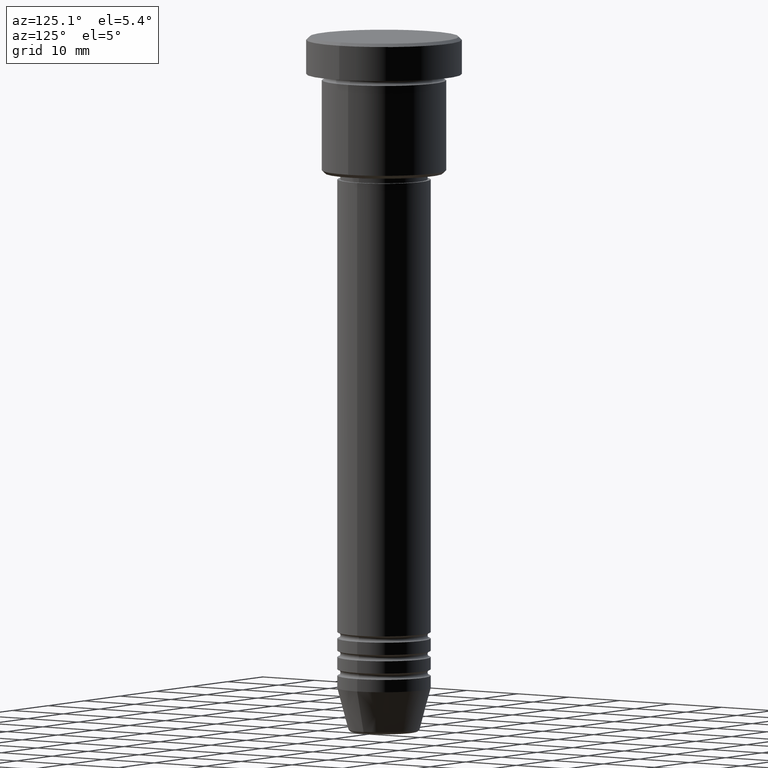
[diagram: clean part render]
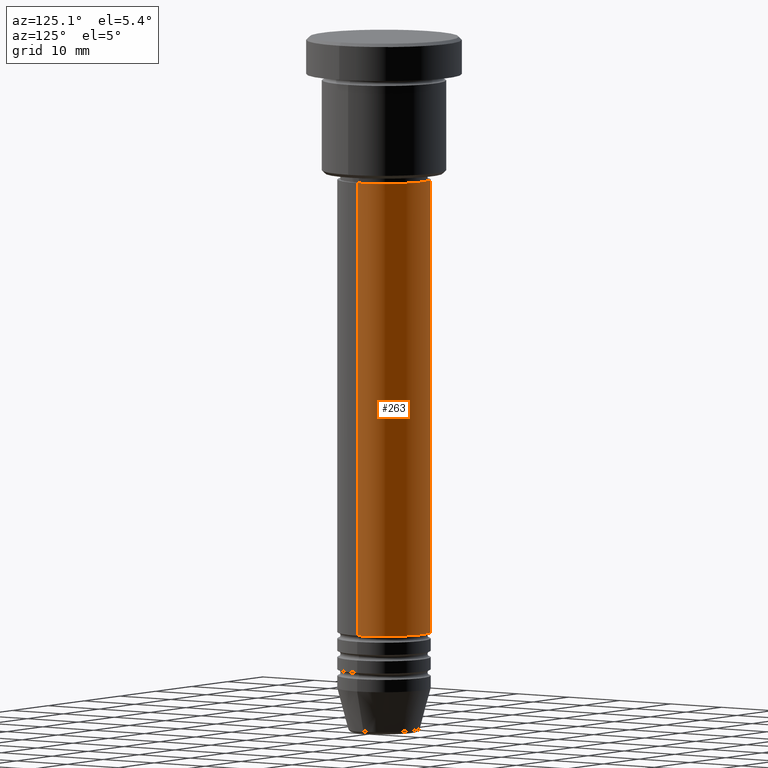
[diagram: same view with one face highlighted and labeled with its STEP entity id]
A machine part, auxiliary view. The second image highlights one B-rep face of the part: STEP entity #263.
In plain terms, the highlighted cylindrical surface (partial cylindrical patch) has radius 7.5 mm, axis along (-0, -0, 1).
Its self-contained STEP definition (entity closure, byte-faithful):
#4 = EDGE_CURVE ( 'NONE', #657, #528, #715, .T. ) ;
#42 = CARTESIAN_POINT ( 'NONE',  ( 7.500000000000000000, 0.000000000000000000, -95.99999999999997158 ) ) ;
#81 = ORIENTED_EDGE ( 'NONE', *, *, #334, .T. ) ;
#135 = AXIS2_PLACEMENT_3D ( 'NONE', #527, #1075, #893 ) ;
#258 = ORIENTED_EDGE ( 'NONE', *, *, #4, .F. ) ;
#263 = ADVANCED_FACE ( 'NONE', ( #854 ), #322, .T. ) ;
#280 = CARTESIAN_POINT ( 'NONE',  ( -7.500000000000000000, 9.184850993605147944E-16, 0.000000000000000000 ) ) ;
#304 = ORIENTED_EDGE ( 'NONE', *, *, #462, .T. ) ;
#322 = CYLINDRICAL_SURFACE ( 'NONE', #521, 7.500000000000000000 ) ;
#334 = EDGE_CURVE ( 'NONE', #633, #756, #431, .T. ) ;
#390 = CARTESIAN_POINT ( 'NONE',  ( 7.500000000000000000, 0.000000000000000000, -23.00000000000001421 ) ) ;
#410 = CIRCLE ( 'NONE', #135, 7.500000000000000000 ) ;
#431 = LINE ( 'NONE', #280, #576 ) ;
#462 = EDGE_CURVE ( 'NONE', #657, #633, #410, .T. ) ;
#521 = AXIS2_PLACEMENT_3D ( 'NONE', #592, #952, #785 ) ;
#527 = CARTESIAN_POINT ( 'NONE',  ( 0.000000000000000000, 0.000000000000000000, -95.99999999999997158 ) ) ;
#528 = VERTEX_POINT ( 'NONE', #390 ) ;
#561 = CIRCLE ( 'NONE', #1107, 7.500000000000000000 ) ;
#576 = VECTOR ( 'NONE', #810, 1000.000000000000000 ) ;
#588 = CARTESIAN_POINT ( 'NONE',  ( -7.500000000000000000, 9.184850993605147944E-16, -23.00000000000001421 ) ) ;
#592 = CARTESIAN_POINT ( 'NONE',  ( 0.000000000000000000, 0.000000000000000000, 0.000000000000000000 ) ) ;
#612 = DIRECTION ( 'NONE',  ( -0.000000000000000000, -0.000000000000000000, 1.000000000000000000 ) ) ;
#633 = VERTEX_POINT ( 'NONE', #837 ) ;
#646 = EDGE_LOOP ( 'NONE', ( #304, #81, #833, #258 ) ) ;
#657 = VERTEX_POINT ( 'NONE', #42 ) ;
#715 = LINE ( 'NONE', #1175, #754 ) ;
#754 = VECTOR ( 'NONE', #1162, 1000.000000000000000 ) ;
#756 = VERTEX_POINT ( 'NONE', #588 ) ;
#785 = DIRECTION ( 'NONE',  ( 1.000000000000000000, 0.000000000000000000, 0.000000000000000000 ) ) ;
#810 = DIRECTION ( 'NONE',  ( -0.000000000000000000, -0.000000000000000000, 1.000000000000000000 ) ) ;
#833 = ORIENTED_EDGE ( 'NONE', *, *, #859, .F. ) ;
#837 = CARTESIAN_POINT ( 'NONE',  ( -7.500000000000000000, 9.184850993605147944E-16, -95.99999999999997158 ) ) ;
#854 = FACE_OUTER_BOUND ( 'NONE', #646, .T. ) ;
#859 = EDGE_CURVE ( 'NONE', #528, #756, #561, .T. ) ;
#893 = DIRECTION ( 'NONE',  ( 1.000000000000000000, 0.000000000000000000, 0.000000000000000000 ) ) ;
#952 = DIRECTION ( 'NONE',  ( -0.000000000000000000, -0.000000000000000000, 1.000000000000000000 ) ) ;
#986 = CARTESIAN_POINT ( 'NONE',  ( 0.000000000000000000, 0.000000000000000000, -23.00000000000001421 ) ) ;
#1075 = DIRECTION ( 'NONE',  ( -0.000000000000000000, -0.000000000000000000, 1.000000000000000000 ) ) ;
#1107 = AXIS2_PLACEMENT_3D ( 'NONE', #986, #612, #1146 ) ;
#1146 = DIRECTION ( 'NONE',  ( 1.000000000000000000, 0.000000000000000000, 0.000000000000000000 ) ) ;
#1162 = DIRECTION ( 'NONE',  ( -0.000000000000000000, -0.000000000000000000, 1.000000000000000000 ) ) ;
#1175 = CARTESIAN_POINT ( 'NONE',  ( 7.500000000000000000, 0.000000000000000000, 0.000000000000000000 ) ) ;